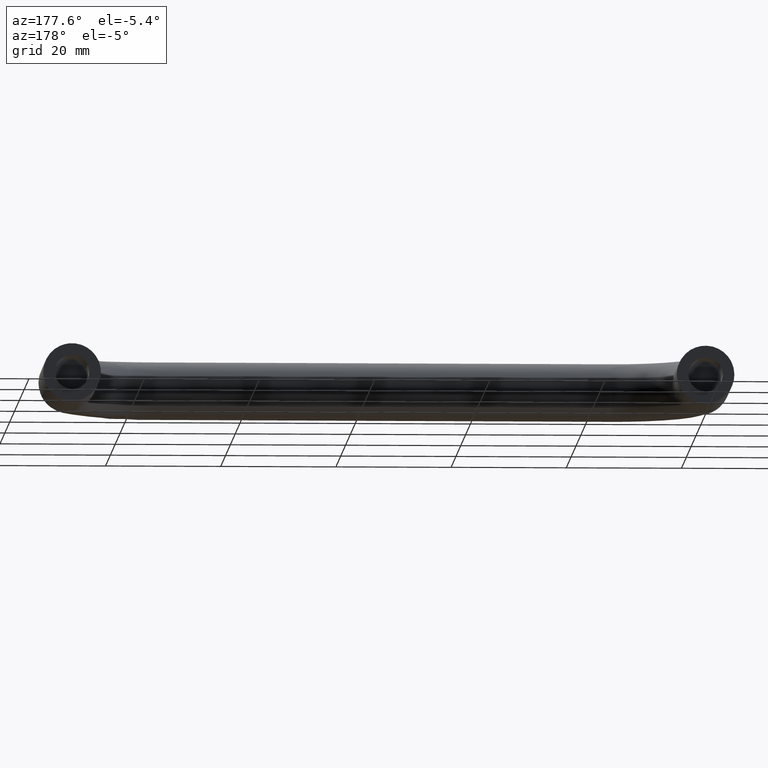
[diagram: clean part render]
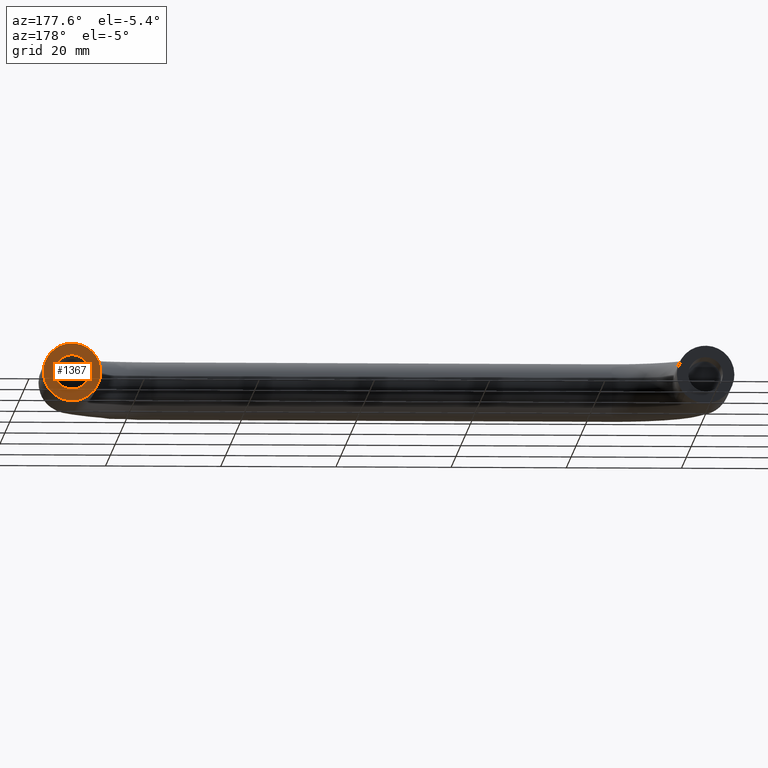
[diagram: same view with one face highlighted and labeled with its STEP entity id]
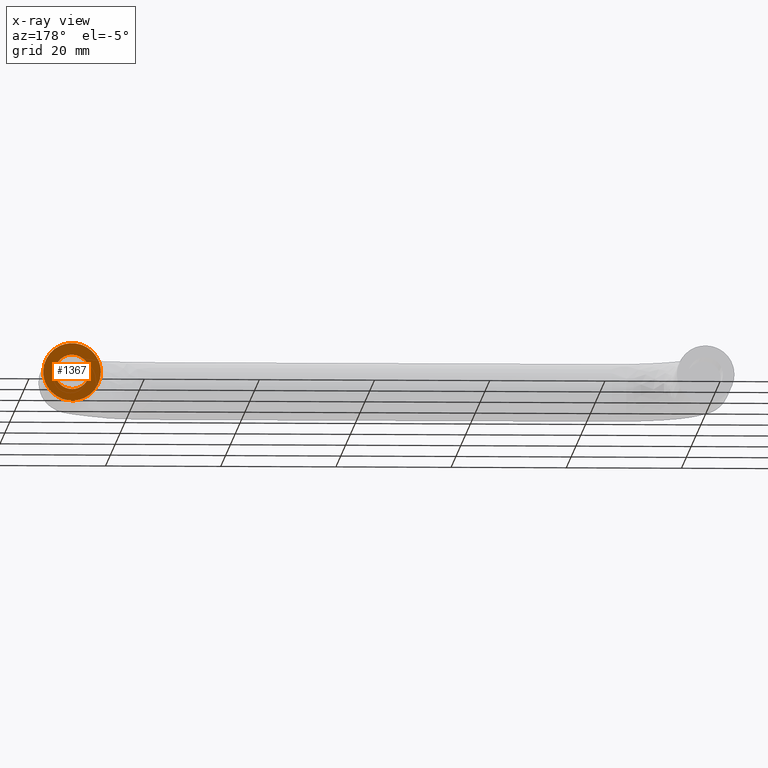
[diagram: x-ray of the same camera — body ghosted, the highlighted face saturated]
A machine part, auxiliary view. The second image highlights one B-rep face of the part: STEP entity #1367.
The next image is the same camera in x-ray: the body ghosted, the highlighted face saturated — about 0% of this face is hidden behind the body in this view.
In plain terms, the highlighted face is a freeform B-spline surface patch.
Its self-contained STEP definition (entity closure, byte-faithful):
#261=CARTESIAN_POINT('',(107.009247998839200,-4.163336E-017,0.235377287674147));
#262=VERTEX_POINT('',#261);
#268=CARTESIAN_POINT('',(110.0,0.0,3.0));
#269=VERTEX_POINT('',#268);
#270=CARTESIAN_POINT('',(110.0,0.0,3.0));
#271=CARTESIAN_POINT('',(107.226828525938030,0.0,3.000000000000000));
#272=CARTESIAN_POINT('',(107.009247998839270,-4.163336E-017,0.235377287674147));
#280=(BOUNDED_CURVE()B_SPLINE_CURVE(2,(#270,#271,#272),.UNSPECIFIED.,.F.,.U.)B_SPLINE_CURVE_WITH_KNOTS((3,3),(0.0,0.236331300576525),.UNSPECIFIED.)CURVE()GEOMETRIC_REPRESENTATION_ITEM()RATIONAL_B_SPLINE_CURVE((1.0,0.723120658671088,0.969723356054443))REPRESENTATION_ITEM(''));
#281=EDGE_CURVE('',#269,#262,#280,.T.);
#283=CARTESIAN_POINT('',(112.990752001160800,-4.163336E-017,-0.235377287674146));
#284=VERTEX_POINT('',#283);
#285=CARTESIAN_POINT('',(112.990752001160770,-4.163336E-017,-0.235377287674146));
#286=CARTESIAN_POINT('',(113.0,0.0,-0.117870321515896));
#287=CARTESIAN_POINT('',(113.0,0.0,0.0));
#288=CARTESIAN_POINT('',(113.0,0.0,3.0));
#289=CARTESIAN_POINT('',(110.0,0.0,3.0));
#297=(BOUNDED_CURVE()B_SPLINE_CURVE(2,(#285,#286,#287,#288,#289),.UNSPECIFIED.,.F.,.U.)B_SPLINE_CURVE_WITH_KNOTS((3,2,3),(0.736331300576525,0.750000000000000,1.0),.UNSPECIFIED.)CURVE()GEOMETRIC_REPRESENTATION_ITEM()RATIONAL_B_SPLINE_CURVE((0.969723356054443,0.983986122515459,1.0,0.707106781186548,1.0))REPRESENTATION_ITEM(''));
#298=EDGE_CURVE('',#284,#269,#297,.T.);
#374=CARTESIAN_POINT('',(110.0,0.0,-3.0));
#375=VERTEX_POINT('',#374);
#376=CARTESIAN_POINT('',(110.0,0.0,-3.0));
#377=CARTESIAN_POINT('',(112.773171474061950,0.0,-3.0));
#378=CARTESIAN_POINT('',(112.990752001160730,-4.163336E-017,-0.235377287674146));
#386=(BOUNDED_CURVE()B_SPLINE_CURVE(2,(#376,#377,#378),.UNSPECIFIED.,.F.,.U.)B_SPLINE_CURVE_WITH_KNOTS((3,3),(0.500000000000000,0.736331300576524),.UNSPECIFIED.)CURVE()GEOMETRIC_REPRESENTATION_ITEM()RATIONAL_B_SPLINE_CURVE((1.0,0.723120658671089,0.969723356054442))REPRESENTATION_ITEM(''));
#387=EDGE_CURVE('',#375,#284,#386,.T.);
#389=CARTESIAN_POINT('',(107.009247998839270,-4.163336E-017,0.235377287674147));
#390=CARTESIAN_POINT('',(107.000000000000040,0.0,0.117870321515896));
#391=CARTESIAN_POINT('',(107.0,0.0,0.0));
#392=CARTESIAN_POINT('',(107.000000000000010,0.0,-3.0));
#393=CARTESIAN_POINT('',(110.0,0.0,-3.0));
#401=(BOUNDED_CURVE()B_SPLINE_CURVE(2,(#389,#390,#391,#392,#393),.UNSPECIFIED.,.F.,.U.)B_SPLINE_CURVE_WITH_KNOTS((3,2,3),(0.236331300576525,0.250000000000000,0.500000000000000),.UNSPECIFIED.)CURVE()GEOMETRIC_REPRESENTATION_ITEM()RATIONAL_B_SPLINE_CURVE((0.969723356054443,0.983986122515459,1.0,0.707106781186548,1.0))REPRESENTATION_ITEM(''));
#402=EDGE_CURVE('',#262,#375,#401,.T.);
#441=CARTESIAN_POINT('',(110.392295478934200,1.337819E-014,4.984586668642422));
#442=VERTEX_POINT('',#441);
#448=CARTESIAN_POINT('',(105.350677901148300,1.337036E-014,1.839511897523058));
#449=VERTEX_POINT('',#448);
#450=CARTESIAN_POINT('',(110.392295478934230,1.337819E-014,4.984586668642423));
#451=CARTESIAN_POINT('',(110.196450535334710,1.387779E-014,4.999999999999999));
#452=CARTESIAN_POINT('',(110.0,1.387779E-014,5.0));
#453=CARTESIAN_POINT('',(106.601130191421550,1.387779E-014,5.0));
#454=CARTESIAN_POINT('',(105.350677901148250,1.337036E-014,1.839511897523058));
#462=(BOUNDED_CURVE()B_SPLINE_CURVE(2,(#450,#451,#452,#453,#454),.UNSPECIFIED.,.F.,.U.)B_SPLINE_CURVE_WITH_KNOTS((3,2,3),(0.736331300612477,0.750000000000000,0.937532549935001),.UNSPECIFIED.)CURVE()GEOMETRIC_REPRESENTATION_ITEM()RATIONAL_B_SPLINE_CURVE((0.969723356129472,0.983986122557579,1.0,0.780291951268972,0.890203187496130))REPRESENTATION_ITEM(''));
#463=EDGE_CURVE('',#442,#449,#462,.T.);
#515=CARTESIAN_POINT('',(105.0,1.387779E-014,0.0));
#516=VERTEX_POINT('',#515);
#517=CARTESIAN_POINT('',(105.350677901148260,1.337036E-014,1.839511897523058));
#518=CARTESIAN_POINT('',(104.999999999999990,1.387779E-014,0.953181932756086));
#519=CARTESIAN_POINT('',(105.0,1.387779E-014,0.0));
#527=(BOUNDED_CURVE()B_SPLINE_CURVE(2,(#517,#518,#519),.UNSPECIFIED.,.F.,.U.)B_SPLINE_CURVE_WITH_KNOTS((3,3),(0.937532549935002,1.0),.UNSPECIFIED.)CURVE()GEOMETRIC_REPRESENTATION_ITEM()RATIONAL_B_SPLINE_CURVE((0.890203187496131,0.926814829917577,1.0))REPRESENTATION_ITEM(''));
#528=EDGE_CURVE('',#449,#516,#527,.T.);
#530=CARTESIAN_POINT('',(115.0,1.387779E-014,0.0));
#531=VERTEX_POINT('',#530);
#532=CARTESIAN_POINT('',(105.0,1.387779E-014,0.0));
#533=CARTESIAN_POINT('',(105.0,1.387779E-014,-5.000000000000001));
#534=CARTESIAN_POINT('',(110.0,1.387779E-014,-5.0));
#535=CARTESIAN_POINT('',(114.999999999999970,1.387779E-014,-5.000000000000001));
#536=CARTESIAN_POINT('',(115.0,1.387779E-014,0.0));
#544=(BOUNDED_CURVE()B_SPLINE_CURVE(2,(#532,#533,#534,#535,#536),.UNSPECIFIED.,.F.,.U.)B_SPLINE_CURVE_WITH_KNOTS((3,2,3),(0.0,0.250000000000000,0.500000000000000),.UNSPECIFIED.)CURVE()GEOMETRIC_REPRESENTATION_ITEM()RATIONAL_B_SPLINE_CURVE((1.0,0.707106781186548,1.0,0.707106781186548,1.0))REPRESENTATION_ITEM(''));
#545=EDGE_CURVE('',#516,#531,#544,.T.);
#547=CARTESIAN_POINT('',(115.0,1.387779E-014,0.0));
#548=CARTESIAN_POINT('',(114.999999999999970,1.387779E-014,4.621952457742311));
#549=CARTESIAN_POINT('',(110.392295478934190,1.337819E-014,4.984586668642422));
#557=(BOUNDED_CURVE()B_SPLINE_CURVE(2,(#547,#548,#549),.UNSPECIFIED.,.F.,.U.)B_SPLINE_CURVE_WITH_KNOTS((3,3),(0.500000000000000,0.736331300612478),.UNSPECIFIED.)CURVE()GEOMETRIC_REPRESENTATION_ITEM()RATIONAL_B_SPLINE_CURVE((1.0,0.723120658628967,0.969723356129474))REPRESENTATION_ITEM(''));
#558=EDGE_CURVE('',#531,#442,#557,.T.);
#1350=CARTESIAN_POINT('',(115.499499980618100,1.387779E-014,-5.499495050288499));
#1351=CARTESIAN_POINT('',(104.500499751161000,1.387779E-014,-5.499495050288499));
#1352=CARTESIAN_POINT('',(115.499499980618100,1.387779E-014,5.499396613217653));
#1353=CARTESIAN_POINT('',(104.500499751161000,1.387779E-014,5.499396613217653));
#1354=B_SPLINE_SURFACE_WITH_KNOTS('',1,1,((#1350,#1352),(#1351,#1353)),.UNSPECIFIED.,.F.,.F.,.U.,(2,2),(2,2),(0.0,10.999000229457030),(0.0,10.998891663506150),.UNSPECIFIED.);
#1355=ORIENTED_EDGE('',*,*,#528,.F.);
#1356=ORIENTED_EDGE('',*,*,#463,.F.);
#1357=ORIENTED_EDGE('',*,*,#558,.F.);
#1358=ORIENTED_EDGE('',*,*,#545,.F.);
#1359=EDGE_LOOP('',(#1355,#1356,#1357,#1358));
#1360=FACE_OUTER_BOUND('',#1359,.T.);
#1361=ORIENTED_EDGE('',*,*,#387,.T.);
#1362=ORIENTED_EDGE('',*,*,#298,.T.);
#1363=ORIENTED_EDGE('',*,*,#281,.T.);
#1364=ORIENTED_EDGE('',*,*,#402,.T.);
#1365=EDGE_LOOP('',(#1361,#1362,#1363,#1364));
#1366=FACE_BOUND('',#1365,.T.);
#1367=ADVANCED_FACE('',(#1360,#1366),#1354,.T.);